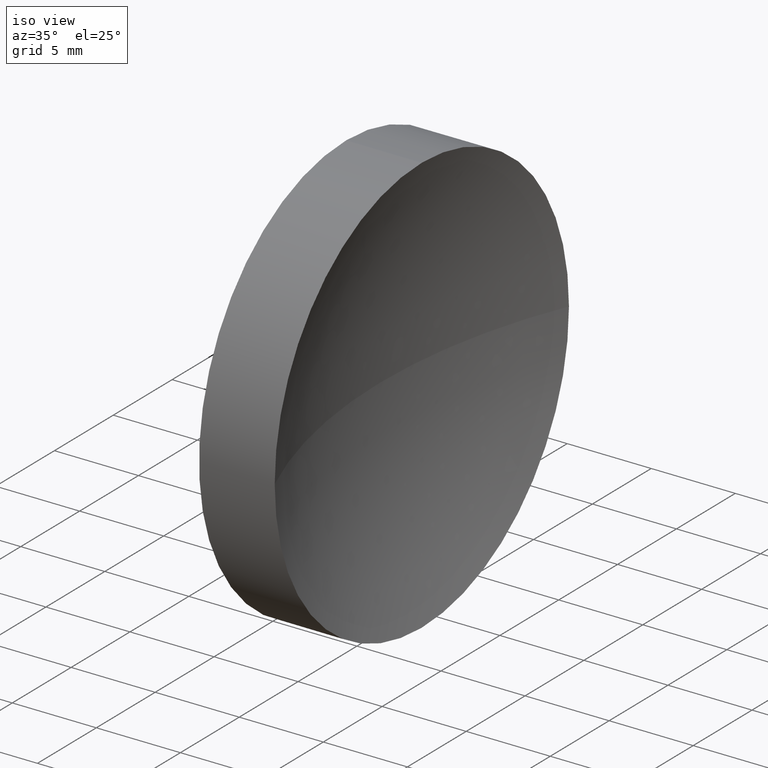
[diagram: clean part render]
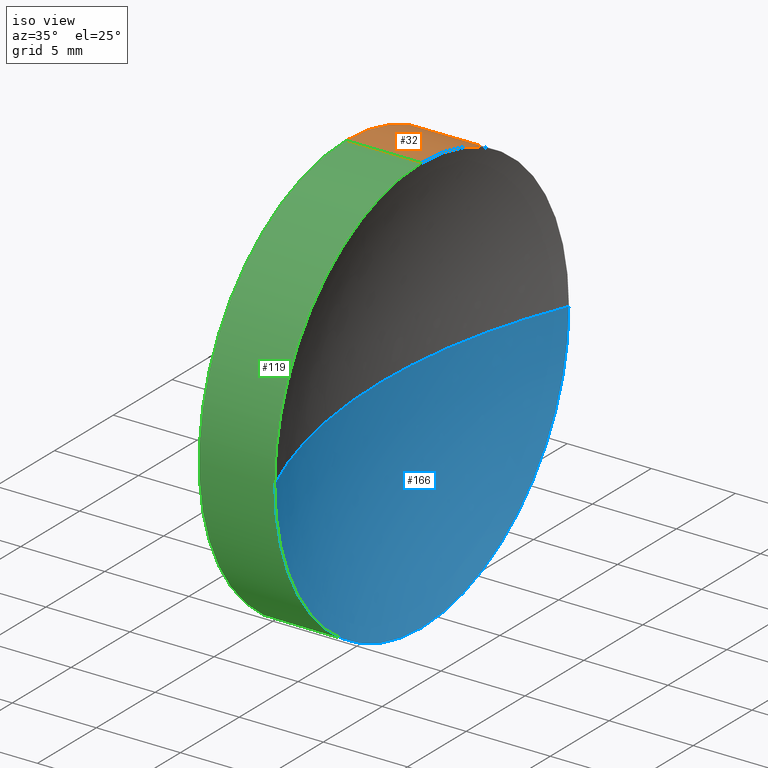
[diagram: same view with three faces highlighted in distinct colors, each labeled with its STEP entity id]
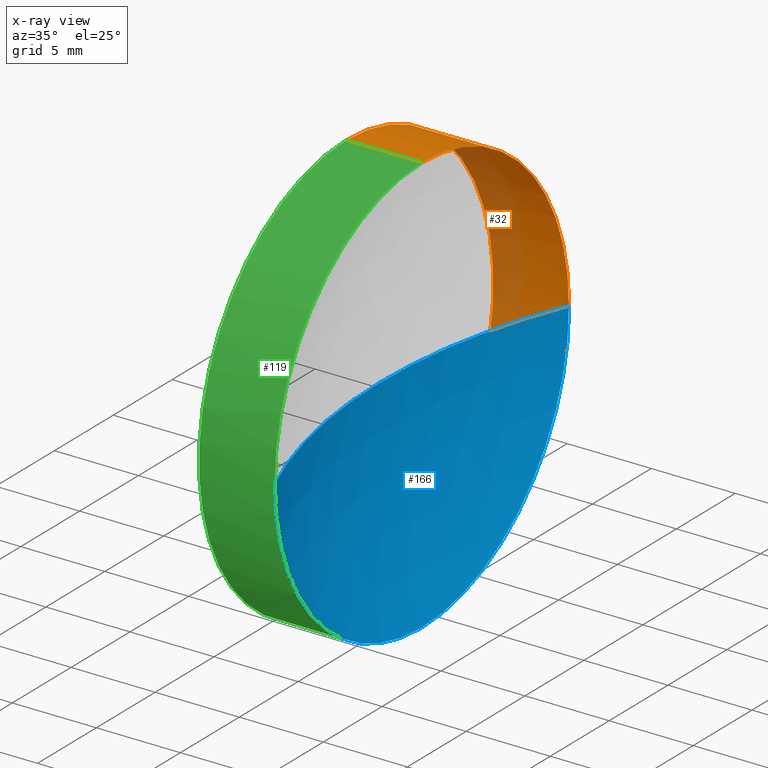
[diagram: x-ray of the same camera — body ghosted, the three highlighted faces saturated]
A machine part, iso view with three faces highlighted in distinct colors.
The next image is the same camera in x-ray (body ghosted, the three faces saturated) — at least one of them is partly hidden behind the body in this view.
Their STEP definitions:

[orange] entity #32 — the highlighted cylindrical surface (partial cylindrical patch) has radius 12.5 mm, axis along (-1, -0, -0).
#2 = FACE_OUTER_BOUND ( 'NONE', #51, .T. ) ;
#5 = VERTEX_POINT ( 'NONE', #19 ) ;
#6 = CARTESIAN_POINT ( 'NONE',  ( 62.03233705252611700, 32.61076812922678400, 0.0000000000000000000 ) ) ;
#7 = EDGE_CURVE ( 'NONE', #148, #23, #109, .T. ) ;
#12 = CARTESIAN_POINT ( 'NONE',  ( 57.53233705252611700, 32.61076812922678400, 0.0000000000000000000 ) ) ;
#18 = VERTEX_POINT ( 'NONE', #134 ) ;
#19 = CARTESIAN_POINT ( 'NONE',  ( 57.53233705252611700, 32.61076812922678400, 12.49999999999999600 ) ) ;
#23 = VERTEX_POINT ( 'NONE', #165 ) ;
#29 = VECTOR ( 'NONE', #108, 1000.000000000000000 ) ;
#31 = DIRECTION ( 'NONE',  ( -1.000000000000000000, -0.0000000000000000000, -0.0000000000000000000 ) ) ;
#32 = ADVANCED_FACE ( 'NONE', ( #2 ), #185, .T. ) ;
#33 = AXIS2_PLACEMENT_3D ( 'NONE', #83, #98, #154 ) ;
#36 = LINE ( 'NONE', #118, #145 ) ;
#44 = EDGE_CURVE ( 'NONE', #23, #88, #36, .T. ) ;
#48 = ORIENTED_EDGE ( 'NONE', *, *, #93, .F. ) ;
#49 = CIRCLE ( 'NONE', #131, 12.49999999999999600 ) ;
#51 = EDGE_LOOP ( 'NONE', ( #130, #115, #76, #48, #92 ) ) ;
#53 = DIRECTION ( 'NONE',  ( 0.0000000000000000000, 0.0000000000000000000, 1.000000000000000000 ) ) ;
#63 = AXIS2_PLACEMENT_3D ( 'NONE', #78, #31, #53 ) ;
#69 = DIRECTION ( 'NONE',  ( -1.000000000000000000, -0.0000000000000000000, -0.0000000000000000000 ) ) ;
#76 = ORIENTED_EDGE ( 'NONE', *, *, #127, .F. ) ;
#78 = CARTESIAN_POINT ( 'NONE',  ( 56.10091507999716500, 32.61076812922678400, 0.0000000000000000000 ) ) ;
#83 = CARTESIAN_POINT ( 'NONE',  ( 62.03233705252611700, 32.61076812922678400, 0.0000000000000000000 ) ) ;
#85 = CARTESIAN_POINT ( 'NONE',  ( 57.53233705252611700, 32.61076812922678400, -12.49999999999999600 ) ) ;
#88 = VERTEX_POINT ( 'NONE', #85 ) ;
#91 = LINE ( 'NONE', #138, #29 ) ;
#92 = ORIENTED_EDGE ( 'NONE', *, *, #102, .T. ) ;
#93 = EDGE_CURVE ( 'NONE', #18, #5, #91, .T. ) ;
#98 = DIRECTION ( 'NONE',  ( -1.000000000000000000, -0.0000000000000000000, -0.0000000000000000000 ) ) ;
#102 = EDGE_CURVE ( 'NONE', #18, #148, #140, .T. ) ;
#108 = DIRECTION ( 'NONE',  ( -1.000000000000000000, -0.0000000000000000000, -0.0000000000000000000 ) ) ;
#109 = CIRCLE ( 'NONE', #176, 12.49999999999999600 ) ;
#115 = ORIENTED_EDGE ( 'NONE', *, *, #44, .T. ) ;
#118 = CARTESIAN_POINT ( 'NONE',  ( 56.10091507999716500, 32.61076812922678400, -12.49999999999999600 ) ) ;
#126 = DIRECTION ( 'NONE',  ( -1.000000000000000000, -0.0000000000000000000, -0.0000000000000000000 ) ) ;
#127 = EDGE_CURVE ( 'NONE', #5, #88, #49, .T. ) ;
#130 = ORIENTED_EDGE ( 'NONE', *, *, #7, .T. ) ;
#131 = AXIS2_PLACEMENT_3D ( 'NONE', #12, #126, #151 ) ;
#134 = CARTESIAN_POINT ( 'NONE',  ( 62.03233705252611700, 32.61076812922678400, 12.49999999999999600 ) ) ;
#138 = CARTESIAN_POINT ( 'NONE',  ( 56.10091507999716500, 32.61076812922678400, 12.49999999999999600 ) ) ;
#140 = CIRCLE ( 'NONE', #33, 12.49999999999999600 ) ;
#145 = VECTOR ( 'NONE', #69, 1000.000000000000000 ) ;
#148 = VERTEX_POINT ( 'NONE', #181 ) ;
#149 = DIRECTION ( 'NONE',  ( 0.0000000000000000000, 0.0000000000000000000, 1.000000000000000000 ) ) ;
#151 = DIRECTION ( 'NONE',  ( 0.0000000000000000000, 0.0000000000000000000, 1.000000000000000000 ) ) ;
#154 = DIRECTION ( 'NONE',  ( 0.0000000000000000000, 0.0000000000000000000, 1.000000000000000000 ) ) ;
#165 = CARTESIAN_POINT ( 'NONE',  ( 62.03233705252611700, 32.61076812922678400, -12.49999999999999600 ) ) ;
#176 = AXIS2_PLACEMENT_3D ( 'NONE', #6, #177, #149 ) ;
#177 = DIRECTION ( 'NONE',  ( -1.000000000000000000, -0.0000000000000000000, -0.0000000000000000000 ) ) ;
#181 = CARTESIAN_POINT ( 'NONE',  ( 62.03233705252611700, 45.11076812922679100, 1.530808498934191500E-015 ) ) ;
#185 = CYLINDRICAL_SURFACE ( 'NONE', #63, 12.49999999999999600 ) ;

[blue] entity #166 — the highlighted spherical surface has radius 32.5 mm.
#4 = DIRECTION ( 'NONE',  ( 0.0000000000000000000, 0.0000000000000000000, 1.000000000000000000 ) ) ;
#6 = CARTESIAN_POINT ( 'NONE',  ( 62.03233705252611700, 32.61076812922678400, 0.0000000000000000000 ) ) ;
#7 = EDGE_CURVE ( 'NONE', #148, #23, #109, .T. ) ;
#11 = EDGE_CURVE ( 'NONE', #23, #164, #46, .T. ) ;
#16 = CIRCLE ( 'NONE', #184, 32.50000000000000000 ) ;
#23 = VERTEX_POINT ( 'NONE', #165 ) ;
#24 = DIRECTION ( 'NONE',  ( -1.000000000000000000, 0.0000000000000000000, 0.0000000000000000000 ) ) ;
#28 = EDGE_CURVE ( 'NONE', #164, #40, #16, .T. ) ;
#34 = DIRECTION ( 'NONE',  ( -1.000000000000000000, -0.0000000000000000000, -0.0000000000000000000 ) ) ;
#38 = CARTESIAN_POINT ( 'NONE',  ( 62.03233705252611700, 20.11076812922678800, 0.0000000000000000000 ) ) ;
#40 = VERTEX_POINT ( 'NONE', #170 ) ;
#41 = CARTESIAN_POINT ( 'NONE',  ( 92.03233705252611700, 32.61076812922678400, 0.0000000000000000000 ) ) ;
#46 = CIRCLE ( 'NONE', #87, 12.49999999999999600 ) ;
#61 = ORIENTED_EDGE ( 'NONE', *, *, #28, .F. ) ;
#62 = SPHERICAL_SURFACE ( 'NONE', #107, 32.50000000000000000 ) ;
#67 = CARTESIAN_POINT ( 'NONE',  ( 92.03233705252611700, 32.61076812922678400, 0.0000000000000000000 ) ) ;
#75 = CIRCLE ( 'NONE', #80, 32.50000000000000000 ) ;
#77 = CARTESIAN_POINT ( 'NONE',  ( 62.03233705252611700, 32.61076812922678400, 0.0000000000000000000 ) ) ;
#80 = AXIS2_PLACEMENT_3D ( 'NONE', #67, #82, #139 ) ;
#82 = DIRECTION ( 'NONE',  ( 0.0000000000000000000, -1.224646799147353200E-016, 1.000000000000000000 ) ) ;
#84 = EDGE_LOOP ( 'NONE', ( #163, #121, #61, #144 ) ) ;
#87 = AXIS2_PLACEMENT_3D ( 'NONE', #77, #34, #4 ) ;
#97 = DIRECTION ( 'NONE',  ( 0.0000000000000000000, 0.0000000000000000000, 1.000000000000000000 ) ) ;
#107 = AXIS2_PLACEMENT_3D ( 'NONE', #41, #97, #183 ) ;
#109 = CIRCLE ( 'NONE', #176, 12.49999999999999600 ) ;
#121 = ORIENTED_EDGE ( 'NONE', *, *, #174, .T. ) ;
#133 = FACE_OUTER_BOUND ( 'NONE', #84, .T. ) ;
#139 = DIRECTION ( 'NONE',  ( 0.0000000000000000000, -1.000000000000000000, -1.224646799147353500E-016 ) ) ;
#144 = ORIENTED_EDGE ( 'NONE', *, *, #11, .F. ) ;
#147 = CARTESIAN_POINT ( 'NONE',  ( 92.03233705252611700, 32.61076812922678400, 0.0000000000000000000 ) ) ;
#148 = VERTEX_POINT ( 'NONE', #181 ) ;
#149 = DIRECTION ( 'NONE',  ( 0.0000000000000000000, 0.0000000000000000000, 1.000000000000000000 ) ) ;
#156 = DIRECTION ( 'NONE',  ( 0.0000000000000000000, 0.0000000000000000000, -1.000000000000000000 ) ) ;
#163 = ORIENTED_EDGE ( 'NONE', *, *, #7, .F. ) ;
#164 = VERTEX_POINT ( 'NONE', #38 ) ;
#165 = CARTESIAN_POINT ( 'NONE',  ( 62.03233705252611700, 32.61076812922678400, -12.49999999999999600 ) ) ;
#166 = ADVANCED_FACE ( 'NONE', ( #133 ), #62, .F. ) ;
#170 = CARTESIAN_POINT ( 'NONE',  ( 59.53233705252611000, 32.61076812922678400, 0.0000000000000000000 ) ) ;
#174 = EDGE_CURVE ( 'NONE', #148, #40, #75, .T. ) ;
#176 = AXIS2_PLACEMENT_3D ( 'NONE', #6, #177, #149 ) ;
#177 = DIRECTION ( 'NONE',  ( -1.000000000000000000, -0.0000000000000000000, -0.0000000000000000000 ) ) ;
#181 = CARTESIAN_POINT ( 'NONE',  ( 62.03233705252611700, 45.11076812922679100, 1.530808498934191500E-015 ) ) ;
#183 = DIRECTION ( 'NONE',  ( 0.0000000000000000000, -1.000000000000000000, 0.0000000000000000000 ) ) ;
#184 = AXIS2_PLACEMENT_3D ( 'NONE', #147, #156, #24 ) ;

[green] entity #119 — the highlighted cylindrical surface (partial cylindrical patch) has radius 12.5 mm, axis along (-1, -0, -0).
#4 = DIRECTION ( 'NONE',  ( 0.0000000000000000000, 0.0000000000000000000, 1.000000000000000000 ) ) ;
#5 = VERTEX_POINT ( 'NONE', #19 ) ;
#9 = EDGE_LOOP ( 'NONE', ( #117, #64, #81, #30, #175 ) ) ;
#10 = CARTESIAN_POINT ( 'NONE',  ( 56.10091507999716500, 32.61076812922678400, 0.0000000000000000000 ) ) ;
#11 = EDGE_CURVE ( 'NONE', #23, #164, #46, .T. ) ;
#13 = CARTESIAN_POINT ( 'NONE',  ( 57.53233705252611700, 32.61076812922678400, 0.0000000000000000000 ) ) ;
#14 = DIRECTION ( 'NONE',  ( -1.000000000000000000, -0.0000000000000000000, -0.0000000000000000000 ) ) ;
#18 = VERTEX_POINT ( 'NONE', #134 ) ;
#19 = CARTESIAN_POINT ( 'NONE',  ( 57.53233705252611700, 32.61076812922678400, 12.49999999999999600 ) ) ;
#23 = VERTEX_POINT ( 'NONE', #165 ) ;
#25 = DIRECTION ( 'NONE',  ( 0.0000000000000000000, 0.0000000000000000000, 1.000000000000000000 ) ) ;
#29 = VECTOR ( 'NONE', #108, 1000.000000000000000 ) ;
#30 = ORIENTED_EDGE ( 'NONE', *, *, #93, .T. ) ;
#34 = DIRECTION ( 'NONE',  ( -1.000000000000000000, -0.0000000000000000000, -0.0000000000000000000 ) ) ;
#36 = LINE ( 'NONE', #118, #145 ) ;
#38 = CARTESIAN_POINT ( 'NONE',  ( 62.03233705252611700, 20.11076812922678800, 0.0000000000000000000 ) ) ;
#39 = AXIS2_PLACEMENT_3D ( 'NONE', #13, #14, #180 ) ;
#44 = EDGE_CURVE ( 'NONE', #23, #88, #36, .T. ) ;
#45 = CYLINDRICAL_SURFACE ( 'NONE', #60, 12.49999999999999600 ) ;
#46 = CIRCLE ( 'NONE', #87, 12.49999999999999600 ) ;
#60 = AXIS2_PLACEMENT_3D ( 'NONE', #10, #110, #66 ) ;
#64 = ORIENTED_EDGE ( 'NONE', *, *, #11, .T. ) ;
#66 = DIRECTION ( 'NONE',  ( 0.0000000000000000000, 0.0000000000000000000, 1.000000000000000000 ) ) ;
#69 = DIRECTION ( 'NONE',  ( -1.000000000000000000, -0.0000000000000000000, -0.0000000000000000000 ) ) ;
#74 = EDGE_CURVE ( 'NONE', #164, #18, #105, .T. ) ;
#77 = CARTESIAN_POINT ( 'NONE',  ( 62.03233705252611700, 32.61076812922678400, 0.0000000000000000000 ) ) ;
#81 = ORIENTED_EDGE ( 'NONE', *, *, #74, .T. ) ;
#85 = CARTESIAN_POINT ( 'NONE',  ( 57.53233705252611700, 32.61076812922678400, -12.49999999999999600 ) ) ;
#87 = AXIS2_PLACEMENT_3D ( 'NONE', #77, #34, #4 ) ;
#88 = VERTEX_POINT ( 'NONE', #85 ) ;
#91 = LINE ( 'NONE', #138, #29 ) ;
#93 = EDGE_CURVE ( 'NONE', #18, #5, #91, .T. ) ;
#96 = AXIS2_PLACEMENT_3D ( 'NONE', #125, #99, #25 ) ;
#99 = DIRECTION ( 'NONE',  ( -1.000000000000000000, -0.0000000000000000000, -0.0000000000000000000 ) ) ;
#105 = CIRCLE ( 'NONE', #96, 12.49999999999999600 ) ;
#108 = DIRECTION ( 'NONE',  ( -1.000000000000000000, -0.0000000000000000000, -0.0000000000000000000 ) ) ;
#110 = DIRECTION ( 'NONE',  ( -1.000000000000000000, -0.0000000000000000000, -0.0000000000000000000 ) ) ;
#114 = CIRCLE ( 'NONE', #39, 12.49999999999999600 ) ;
#117 = ORIENTED_EDGE ( 'NONE', *, *, #44, .F. ) ;
#118 = CARTESIAN_POINT ( 'NONE',  ( 56.10091507999716500, 32.61076812922678400, -12.49999999999999600 ) ) ;
#119 = ADVANCED_FACE ( 'NONE', ( #159 ), #45, .T. ) ;
#120 = EDGE_CURVE ( 'NONE', #88, #5, #114, .T. ) ;
#125 = CARTESIAN_POINT ( 'NONE',  ( 62.03233705252611700, 32.61076812922678400, 0.0000000000000000000 ) ) ;
#134 = CARTESIAN_POINT ( 'NONE',  ( 62.03233705252611700, 32.61076812922678400, 12.49999999999999600 ) ) ;
#138 = CARTESIAN_POINT ( 'NONE',  ( 56.10091507999716500, 32.61076812922678400, 12.49999999999999600 ) ) ;
#145 = VECTOR ( 'NONE', #69, 1000.000000000000000 ) ;
#159 = FACE_OUTER_BOUND ( 'NONE', #9, .T. ) ;
#164 = VERTEX_POINT ( 'NONE', #38 ) ;
#165 = CARTESIAN_POINT ( 'NONE',  ( 62.03233705252611700, 32.61076812922678400, -12.49999999999999600 ) ) ;
#175 = ORIENTED_EDGE ( 'NONE', *, *, #120, .F. ) ;
#180 = DIRECTION ( 'NONE',  ( 0.0000000000000000000, 0.0000000000000000000, 1.000000000000000000 ) ) ;